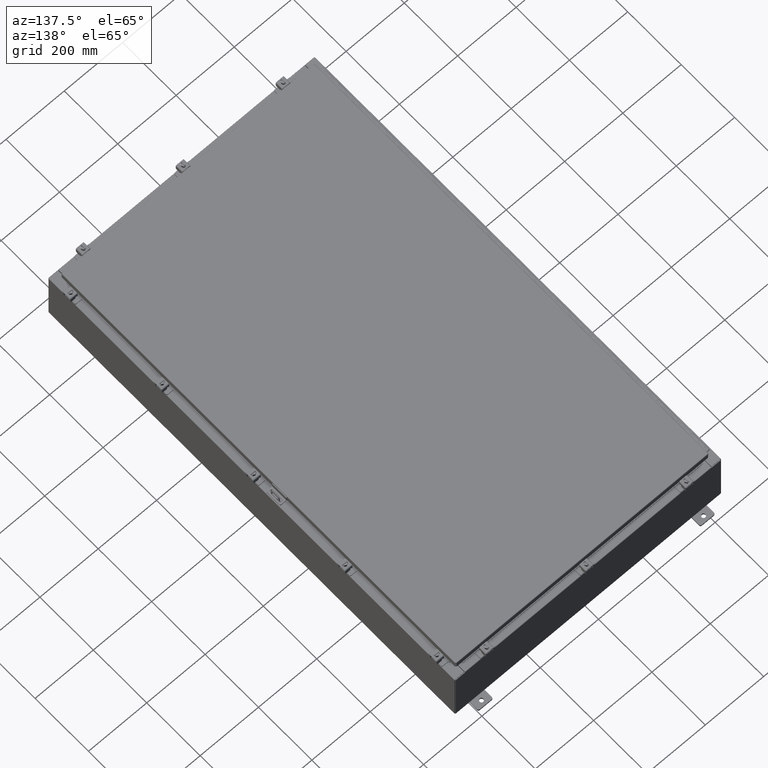
[diagram: clean part render]
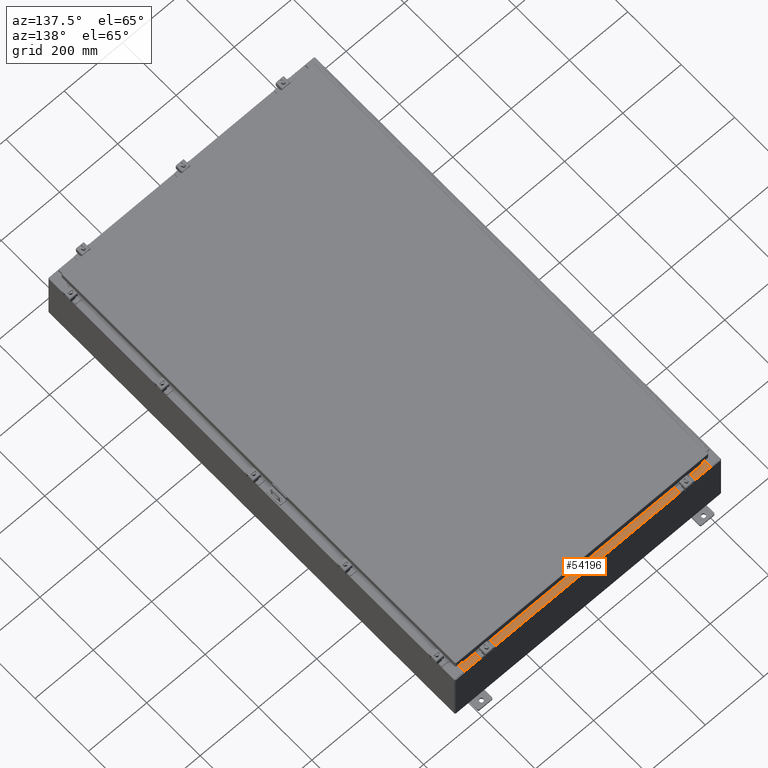
[diagram: same view with one face highlighted and labeled with its STEP entity id]
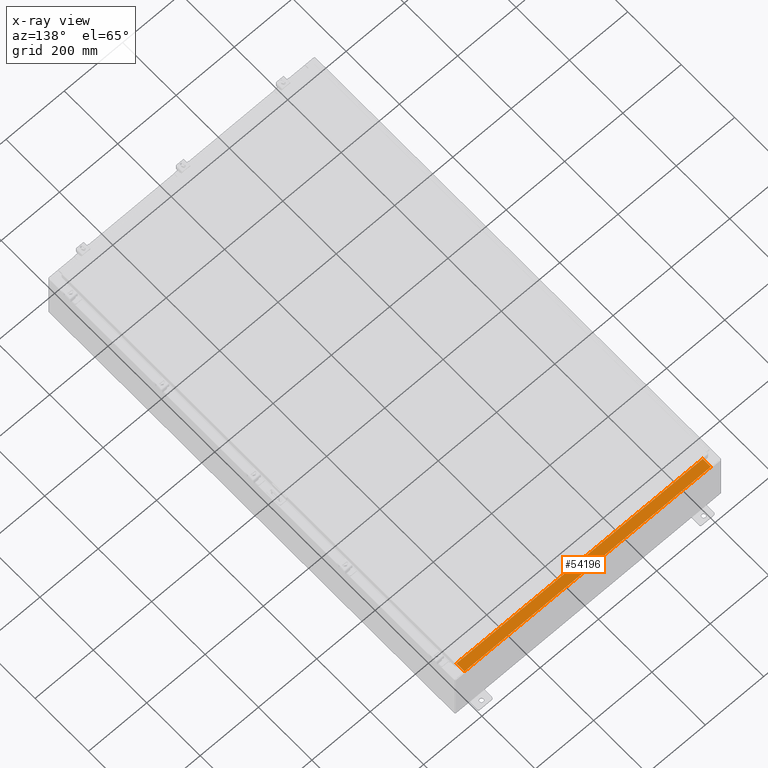
[diagram: x-ray of the same camera — body ghosted, the highlighted face saturated]
A machine part, auxiliary view. The second image highlights one B-rep face of the part: STEP entity #54196.
The next image is the same camera in x-ray: the body ghosted, the highlighted face saturated — about 0% of this face is hidden behind the body in this view.
In plain terms, the highlighted planar face has unit normal (0, 0, 1).
Its self-contained STEP definition (entity closure, byte-faithful):
#1082 = LINE ( 'NONE', #19071, #12859 ) ;
#7310 = DIRECTION ( 'NONE',  ( -1.000000000000000000, 3.284023746380717400E-017, -1.171208052571274300E-031 ) ) ;
#7529 = CARTESIAN_POINT ( 'NONE',  ( -2.880088825576348200E-018, -0.08769999999999972300, 4.000000000000000900 ) ) ;
#9619 = VERTEX_POINT ( 'NONE', #19323 ) ;
#10433 = ORIENTED_EDGE ( 'NONE', *, *, #29786, .F. ) ;
#11847 = VECTOR ( 'NONE', #7310, 39.37007874015748100 ) ;
#12859 = VECTOR ( 'NONE', #53860, 39.37007874015748100 ) ;
#16143 = AXIS2_PLACEMENT_3D ( 'NONE', #35900, #55650, #25974 ) ;
#19071 = CARTESIAN_POINT ( 'NONE',  ( -16.63719999999999600, -0.07469999999999973900, 4.000000000000000900 ) ) ;
#19323 = CARTESIAN_POINT ( 'NONE',  ( 16.63720000000000400, -1.287299999999999900, 4.000000000000004400 ) ) ;
#20869 = PLANE ( 'NONE',  #16143 ) ;
#23869 = CARTESIAN_POINT ( 'NONE',  ( -16.63719999999999600, -0.08769999999999972300, 4.000000000000000900 ) ) ;
#24314 = CARTESIAN_POINT ( 'NONE',  ( 16.63720000000000700, -0.08769999999999937600, 4.000000000000000900 ) ) ;
#24474 = ORIENTED_EDGE ( 'NONE', *, *, #49499, .F. ) ;
#25355 = VERTEX_POINT ( 'NONE', #46989 ) ;
#25974 = DIRECTION ( 'NONE',  ( 0.0000000000000000000, -1.000000000000000000, 3.566381192773190000E-015 ) ) ;
#26852 = DIRECTION ( 'NONE',  ( -1.000000000000000000, 0.0000000000000000000, 0.0000000000000000000 ) ) ;
#28900 = VERTEX_POINT ( 'NONE', #23869 ) ;
#29786 = EDGE_CURVE ( 'NONE', #32761, #9619, #60249, .T. ) ;
#30605 = EDGE_CURVE ( 'NONE', #25355, #28900, #1082, .T. ) ;
#32761 = VERTEX_POINT ( 'NONE', #24314 ) ;
#35635 = FACE_OUTER_BOUND ( 'NONE', #47413, .T. ) ;
#35900 = CARTESIAN_POINT ( 'NONE',  ( 0.0000000000000000000, 1.425992975200418500E-014, 4.000000000000000900 ) ) ;
#38861 = ORIENTED_EDGE ( 'NONE', *, *, #30605, .F. ) ;
#42740 = EDGE_CURVE ( 'NONE', #32761, #28900, #51559, .T. ) ;
#46075 = CARTESIAN_POINT ( 'NONE',  ( 16.63720000000000400, -1.300299999999999800, 4.000000000000004400 ) ) ;
#46669 = CARTESIAN_POINT ( 'NONE',  ( 16.63720000000000700, -1.287299999999999900, 4.000000000000004400 ) ) ;
#46989 = CARTESIAN_POINT ( 'NONE',  ( -16.63719999999999600, -1.287299999999999200, 4.000000000000004400 ) ) ;
#47221 = VECTOR ( 'NONE', #55874, 39.37007874015748100 ) ;
#47413 = EDGE_LOOP ( 'NONE', ( #38861, #24474, #10433, #59726 ) ) ;
#49499 = EDGE_CURVE ( 'NONE', #9619, #25355, #55591, .T. ) ;
#51414 = VECTOR ( 'NONE', #26852, 39.37007874015748100 ) ;
#51559 = LINE ( 'NONE', #7529, #11847 ) ;
#53860 = DIRECTION ( 'NONE',  ( -0.0000000000000000000, 1.000000000000000000, -3.566381192773190000E-015 ) ) ;
#54196 = ADVANCED_FACE ( 'NONE', ( #35635 ), #20869, .T. ) ;
#55591 = LINE ( 'NONE', #46669, #51414 ) ;
#55650 = DIRECTION ( 'NONE',  ( 0.0000000000000000000, 3.566381192773190000E-015, 1.000000000000000000 ) ) ;
#55874 = DIRECTION ( 'NONE',  ( -0.0000000000000000000, -1.000000000000000000, 3.566381192773190000E-015 ) ) ;
#59726 = ORIENTED_EDGE ( 'NONE', *, *, #42740, .T. ) ;
#60249 = LINE ( 'NONE', #46075, #47221 ) ;